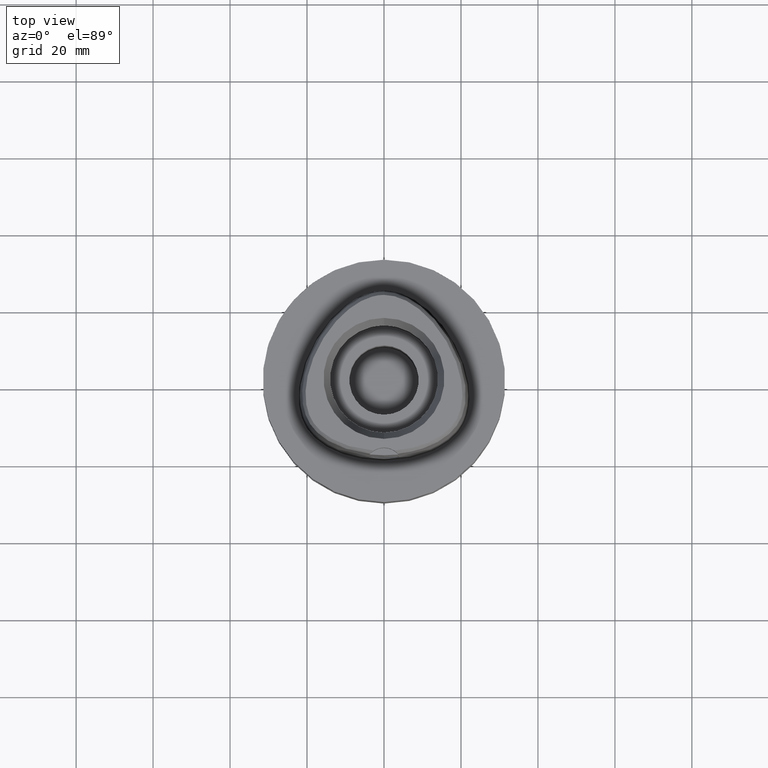
[diagram: clean part render]
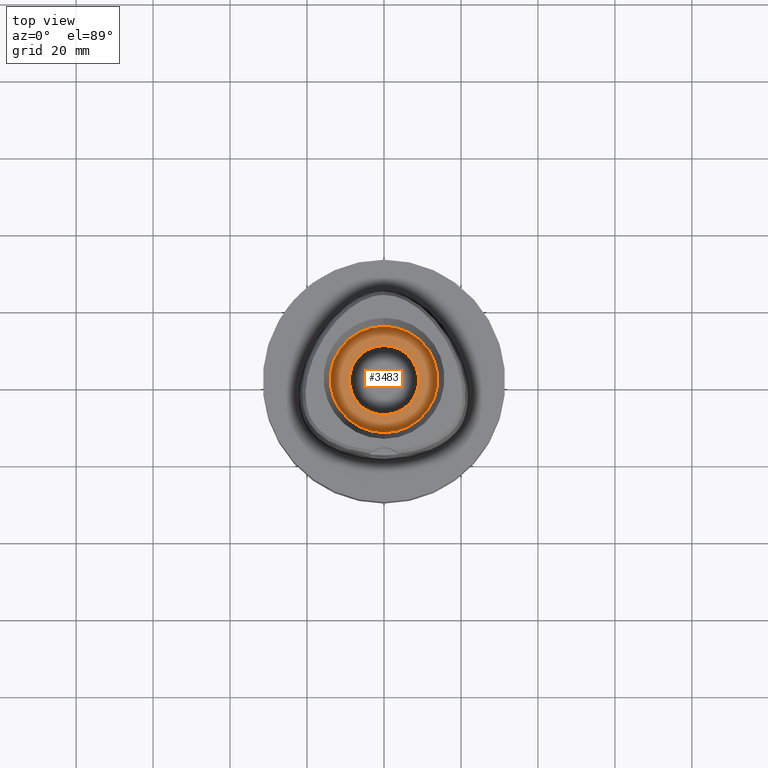
[diagram: same view with one face highlighted and labeled with its STEP entity id]
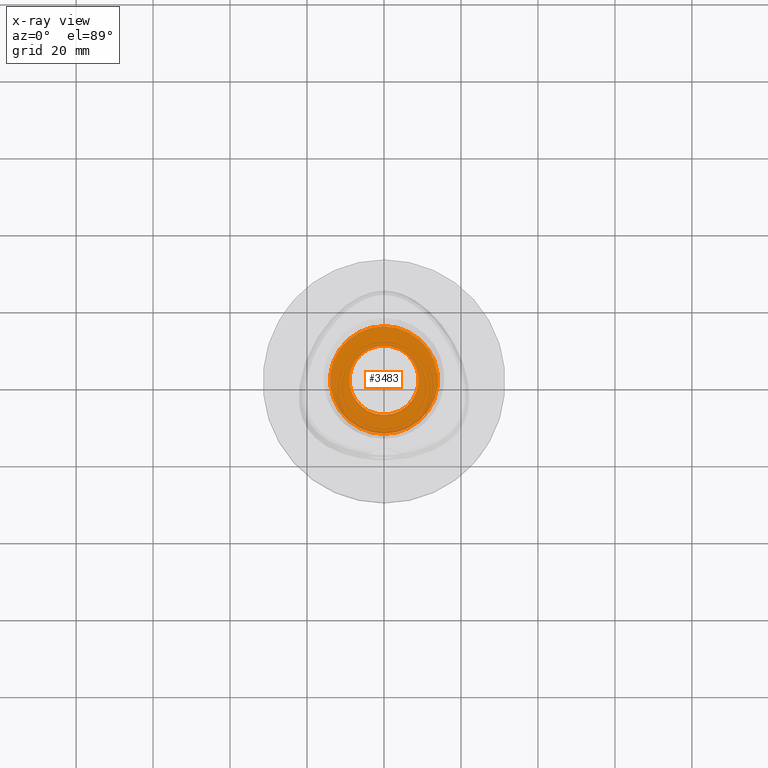
[diagram: x-ray of the same camera — body ghosted, the highlighted face saturated]
A machine part, top view. The second image highlights one B-rep face of the part: STEP entity #3483.
The next image is the same camera in x-ray: the body ghosted, the highlighted face saturated — about 0% of this face is hidden behind the body in this view.
In plain terms, the highlighted planar face has unit normal (0, 0, -1).
Its self-contained STEP definition (entity closure, byte-faithful):
#1486=CARTESIAN_POINT('',(0.E0,0.E0,1.1E1));
#1487=DIRECTION('',(0.E0,0.E0,-1.E0));
#1488=DIRECTION('',(0.E0,1.E0,0.E0));
#1489=AXIS2_PLACEMENT_3D('',#1486,#1487,#1488);
#1494=CARTESIAN_POINT('',(0.E0,0.E0,1.1E1));
#1495=DIRECTION('',(0.E0,0.E0,-1.E0));
#1496=DIRECTION('',(0.E0,-1.E0,0.E0));
#1497=AXIS2_PLACEMENT_3D('',#1494,#1495,#1496);
#1502=CARTESIAN_POINT('',(0.E0,0.E0,1.1E1));
#1503=DIRECTION('',(0.E0,0.E0,1.E0));
#1504=DIRECTION('',(0.E0,1.E0,0.E0));
#1505=AXIS2_PLACEMENT_3D('',#1502,#1503,#1504);
#1510=CARTESIAN_POINT('',(0.E0,0.E0,1.1E1));
#1511=DIRECTION('',(0.E0,0.E0,1.E0));
#1512=DIRECTION('',(0.E0,-1.E0,0.E0));
#1513=AXIS2_PLACEMENT_3D('',#1510,#1511,#1512);
#1742=CARTESIAN_POINT('',(0.E0,1.4E1,1.1E1));
#1743=VERTEX_POINT('',#1742);
#1744=CARTESIAN_POINT('',(0.E0,-1.4E1,1.1E1));
#1745=VERTEX_POINT('',#1744);
#1762=CARTESIAN_POINT('',(0.E0,9.E0,1.1E1));
#1763=CARTESIAN_POINT('',(0.E0,-9.E0,1.1E1));
#1764=VERTEX_POINT('',#1762);
#1765=VERTEX_POINT('',#1763);
#3468=CARTESIAN_POINT('',(0.E0,0.E0,1.1E1));
#3469=DIRECTION('',(0.E0,0.E0,-1.E0));
#3470=DIRECTION('',(0.E0,-1.E0,0.E0));
#3471=AXIS2_PLACEMENT_3D('',#3468,#3469,#3470);
#3472=PLANE('',#3471);
#3473=ORIENTED_EDGE('',*,*,#3286,.T.);
#3474=ORIENTED_EDGE('',*,*,#3266,.T.);
#3475=EDGE_LOOP('',(#3473,#3474));
#3476=FACE_OUTER_BOUND('',#3475,.F.);
#3478=ORIENTED_EDGE('',*,*,#3477,.T.);
#3480=ORIENTED_EDGE('',*,*,#3479,.T.);
#3481=EDGE_LOOP('',(#3478,#3480));
#3482=FACE_BOUND('',#3481,.F.);
#1490=CIRCLE('',#1489,1.4E1);
#1498=CIRCLE('',#1497,1.4E1);
#1506=CIRCLE('',#1505,9.E0);
#1514=CIRCLE('',#1513,9.E0);
#3266=EDGE_CURVE('',#1745,#1743,#1498,.T.);
#3286=EDGE_CURVE('',#1743,#1745,#1490,.T.);
#3477=EDGE_CURVE('',#1764,#1765,#1506,.T.);
#3479=EDGE_CURVE('',#1765,#1764,#1514,.T.);
#3483=ADVANCED_FACE('',(#3476,#3482),#3472,.F.);